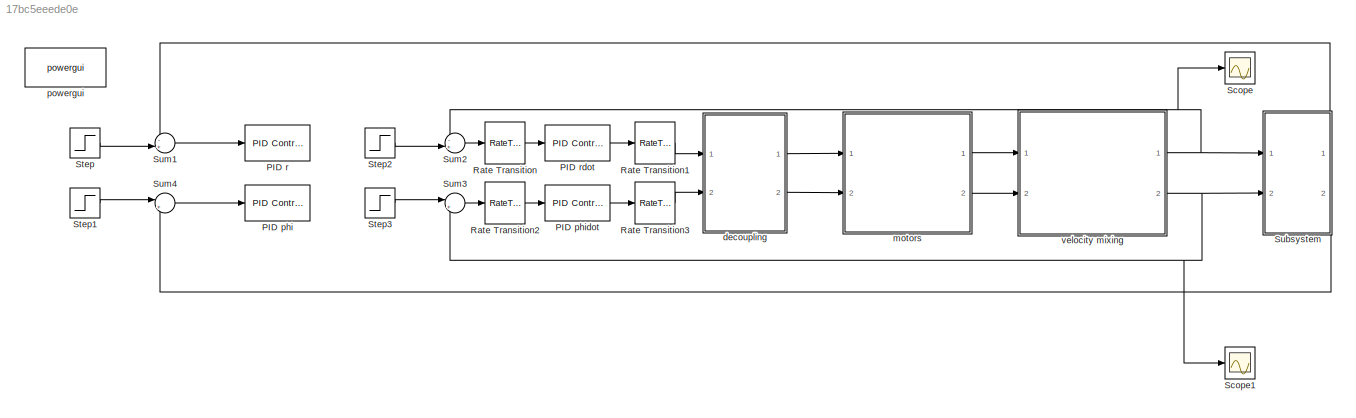
MODEL slx_17bc5eeede0e
KIND model
CONFIG AbsTol = auto
CONFIG EnableMultiTasking = off
CONFIG FixedStep = auto
CONFIG MaxStep = auto
CONFIG MinStep = auto
CONFIG RelTol = 1e-3
CONFIG SampleTimeConstraint = Unconstrained
CONFIG SolverName = VariableStepAuto
CONFIG StartTime = 0.0
CONFIG StopTime = 10
BLOCK [Reference] PID phi  REF=slpidlib/PID Controller
  Ports = [1, 1]
  SourceBlock = slpidlib/PID Controller
  SourceProductBaseCode = SL
  SourceType = PID 1dof
BLOCK [Reference] PID phidot  REF=slpidlib/PID Controller
  Ports = [1, 1]
  SourceBlock = slpidlib/PID Controller
  SourceProductBaseCode = SL
  SourceType = PID 1dof
BLOCK [Reference] PID r  REF=slpidlib/PID Controller
  Ports = [1, 1]
  SourceBlock = slpidlib/PID Controller
  SourceProductBaseCode = SL
  SourceType = PID 1dof
BLOCK [Reference] PID rdot  REF=slpidlib/PID Controller
  Ports = [1, 1]
  SourceBlock = slpidlib/PID Controller
  SourceProductBaseCode = SL
  SourceType = PID 1dof
BLOCK [RateTransition] Rate Transition
  OutPortSampleTime = 0.001
BLOCK [RateTransition] Rate Transition1
BLOCK [RateTransition] Rate Transition2
  OutPortSampleTime = 0.001
BLOCK [RateTransition] Rate Transition3
BLOCK [Scope] Scope
  Floating = off
  NumInputPorts = 1
  Ports = [1]
  ScopeSpecificationString = Simulink.scopes.TimeScopeBlockCfg('CurrentConfiguration', extmgr.ConfigurationSet(extmgr.Configuration('Core','General UI',true),extmgr.Configuration('Core','Source UI',true),extmgr.Configuration('Sources','WiredSimulink',true),extmgr.Configuration('Visuals','Time Domain',true,'SerializedDisplays',{struct('MinYLimReal','-16.00000','MaxYLimReal','144.00000','YLabelReal','','MinYLimMag','0.00000','M...<+1402ch>
BLOCK [Scope] Scope1
  Floating = off
  NumInputPorts = 1
  Ports = [1]
  ScopeSpecificationString = Simulink.scopes.TimeScopeBlockCfg('CurrentConfiguration', extmgr.ConfigurationSet(extmgr.Configuration('Core','General UI',true),extmgr.Configuration('Core','Source UI',true),extmgr.Configuration('Sources','WiredSimulink',true,'DataLoggingVariableName','ScopeData1'),extmgr.Configuration('Visuals','Time Domain',true,'SerializedDisplays',{struct('MinYLimReal','-26325834359409062186603947878041487193...<+3805ch>
BLOCK [Step] Step
  After = 10
  SampleTime = 0
  Time = 10
BLOCK [Step] Step1
  After = 0.5
  SampleTime = 0
BLOCK [Step] Step2
  After = 100
  SampleTime = 0
BLOCK [Step] Step3
  SampleTime = 0
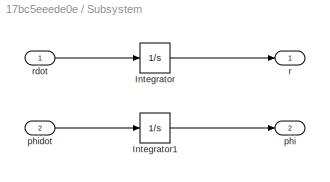
BLOCK [SubSystem] Subsystem
  Ports = [2, 2]
  RequestExecContextInheritance = off
BLOCK [Integrator] Subsystem/Integrator
  Ports = [1, 1]
BLOCK [Integrator] Subsystem/Integrator1
  Ports = [1, 1]
BLOCK [Outport] Subsystem/phi
  Port = 2
BLOCK [Inport] Subsystem/phidot
  Port = 2
BLOCK [Outport] Subsystem/r
BLOCK [Inport] Subsystem/rdot
BLOCK [Sum] Sum1
  Inputs = -+|
  Ports = [2, 1]
BLOCK [Sum] Sum2
  Inputs = -+|
  Ports = [2, 1]
BLOCK [Sum] Sum3
  Inputs = |+-
  Ports = [2, 1]
BLOCK [Sum] Sum4
  Inputs = |+-
  Ports = [2, 1]
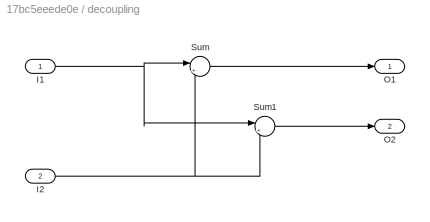
BLOCK [SubSystem] decoupling
  Ports = [2, 2]
  RequestExecContextInheritance = off
BLOCK [Inport] decoupling/I1
BLOCK [Inport] decoupling/I2
  Port = 2
BLOCK [Outport] decoupling/O1
BLOCK [Outport] decoupling/O2
  Port = 2
BLOCK [Sum] decoupling/Sum
  Inputs = |++
  Ports = [2, 1]
BLOCK [Sum] decoupling/Sum1
  Inputs = |+-
  Ports = [2, 1]
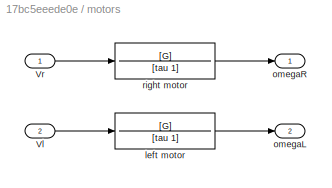
BLOCK [SubSystem] motors
  Ports = [2, 2]
  RequestExecContextInheritance = off
BLOCK [Inport] motors/Vl
  Port = 2
BLOCK [Inport] motors/Vr
BLOCK [TransferFcn] motors/left motor
  Denominator = [tau 1]
  Numerator = [G]
BLOCK [Outport] motors/omegaL
  Port = 2
BLOCK [Outport] motors/omegaR
BLOCK [TransferFcn] motors/right motor
  Denominator = [tau 1]
  Numerator = [G]
BLOCK [Reference] powergui  REF=spspowerguiLib/powergui
  Ports = []
  Priority = 1
  SourceBlock = spspowerguiLib/powergui
  SourceProductBaseCode = PS
  SourceType = PSB option menu block
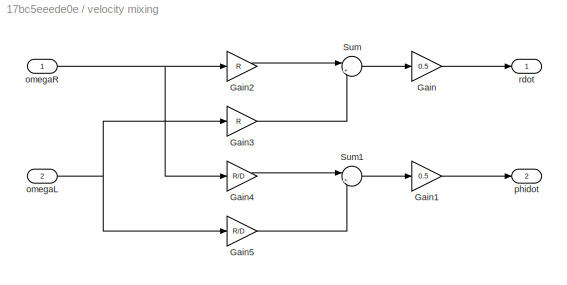
BLOCK [SubSystem] velocity mixing
  Ports = [2, 2]
  RequestExecContextInheritance = off
BLOCK [Gain] velocity mixing/Gain
  Gain = 0.5
BLOCK [Gain] velocity mixing/Gain1
  Gain = 0.5
BLOCK [Gain] velocity mixing/Gain2
  Gain = R
BLOCK [Gain] velocity mixing/Gain3
  Gain = R
BLOCK [Gain] velocity mixing/Gain4
  Gain = R/D
BLOCK [Gain] velocity mixing/Gain5
  Gain = R/D
BLOCK [Sum] velocity mixing/Sum
  Inputs = |++
  Ports = [2, 1]
BLOCK [Sum] velocity mixing/Sum1
  Inputs = |+-
  Ports = [2, 1]
BLOCK [Inport] velocity mixing/omegaL
  Port = 2
BLOCK [Inport] velocity mixing/omegaR
BLOCK [Outport] velocity mixing/phidot
  Port = 2
BLOCK [Outport] velocity mixing/rdot
LINE PID phidot:1 -> Rate Transition3:1
LINE PID rdot:1 -> Rate Transition1:1
LINE Rate Transition1:1 -> decoupling:1
LINE Rate Transition2:1 -> PID phidot:1
LINE Rate Transition3:1 -> decoupling:2
LINE Rate Transition:1 -> PID rdot:1
LINE Step1:1 -> Sum4:1
LINE Step2:1 -> Sum2:2
LINE Step3:1 -> Sum3:1
LINE Step:1 -> Sum1:2
LINE Subsystem/Integrator1:1 -> Subsystem/phi:1
LINE Subsystem/Integrator:1 -> Subsystem/r:1
LINE Subsystem/phidot:1 -> Subsystem/Integrator1:1
LINE Subsystem/rdot:1 -> Subsystem/Integrator:1
LINE Subsystem:1 -> Sum1:1
LINE Subsystem:2 -> Sum4:2
LINE Sum1:1 -> PID r:1
LINE Sum2:1 -> Rate Transition:1
LINE Sum3:1 -> Rate Transition2:1
LINE Sum4:1 -> PID phi:1
NET decoupling/I1:1 -> decoupling/Sum1:1, decoupling/Sum:1
NET decoupling/I2:1 -> decoupling/Sum1:2, decoupling/Sum:2
LINE decoupling/Sum1:1 -> decoupling/O2:1
LINE decoupling/Sum:1 -> decoupling/O1:1
LINE decoupling:1 -> motors:1
LINE decoupling:2 -> motors:2
LINE motors/Vl:1 -> motors/left motor:1
LINE motors/Vr:1 -> motors/right motor:1
LINE motors/left motor:1 -> motors/omegaL:1
LINE motors/right motor:1 -> motors/omegaR:1
LINE motors:1 -> velocity mixing:1
LINE motors:2 -> velocity mixing:2
LINE velocity mixing/Gain1:1 -> velocity mixing/phidot:1
LINE velocity mixing/Gain2:1 -> velocity mixing/Sum:1
LINE velocity mixing/Gain3:1 -> velocity mixing/Sum:2
LINE velocity mixing/Gain4:1 -> velocity mixing/Sum1:1
LINE velocity mixing/Gain5:1 -> velocity mixing/Sum1:2
LINE velocity mixing/Gain:1 -> velocity mixing/rdot:1
LINE velocity mixing/Sum1:1 -> velocity mixing/Gain1:1
LINE velocity mixing/Sum:1 -> velocity mixing/Gain:1
NET velocity mixing/omegaL:1 -> velocity mixing/Gain3:1, velocity mixing/Gain5:1
NET velocity mixing/omegaR:1 -> velocity mixing/Gain2:1, velocity mixing/Gain4:1
NET velocity mixing:1 -> Scope:1, Subsystem:1, Sum2:1
NET velocity mixing:2 -> Scope1:1, Subsystem:2, Sum3:2
note: NET lines group one-source signal fan-out (src -> all destinations, sorted); 1:1 wires keep LINE
